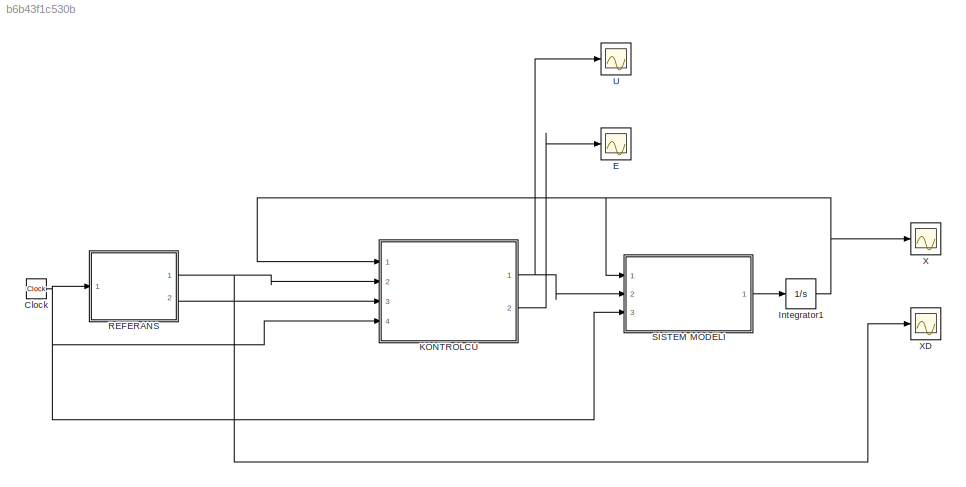
MODEL slx_b6b43f1c530b
KIND model
BLOCK [Clock] Clock
BLOCK [Scope] E
  DataFormat = StructureWithTime
  Floating = off
  NumInputPorts = 1
  Ports = [1]
  SampleTime = 0
  SaveName = ScopeData1
  ShowLegends = off
BLOCK [Integrator] Integrator1
  Ports = [1, 1]
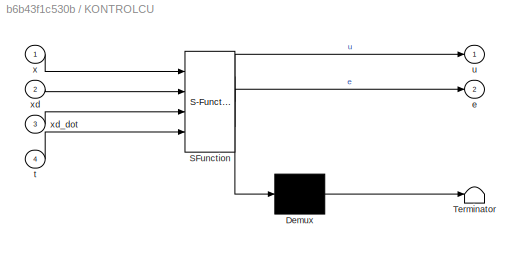
BLOCK [SubSystem] KONTROLCU
  ErrorFcn = Stateflow.Translate.translate
  FunctionWithSeparateData = off
  MaskHideContents = off
  MinAlgLoopOccurrences = off
  Opaque = off
  PermitHierarchicalResolution = ExplicitOnly
  Ports = [4, 2]
  PropExecContextOutsideSubsystem = off
  RTWSystemCode = Auto
  RequestExecContextInheritance = off
  SFBlockType = MATLAB Function
  TreatAsAtomicUnit = on
BLOCK [Demux] KONTROLCU/ Demux 
  Outputs = 1
  Ports = [1, 1]
BLOCK [S-Function] KONTROLCU/ SFunction 
  EnableBusSupport = on
  FunctionName = sf_sfun
  PortCounts = [4 3]
  Ports = [4, 3]
  Tag = Stateflow S-Function ODEV2 1
BLOCK [Terminator] KONTROLCU/ Terminator 
BLOCK [Outport] KONTROLCU/e
  IconDisplay = Port number
  Port = 2
BLOCK [Inport] KONTROLCU/t
  IconDisplay = Port number
  Port = 4
BLOCK [Outport] KONTROLCU/u
  IconDisplay = Port number
BLOCK [Inport] KONTROLCU/x
  IconDisplay = Port number
BLOCK [Inport] KONTROLCU/xd
  IconDisplay = Port number
  Port = 2
BLOCK [Inport] KONTROLCU/xd_dot
  IconDisplay = Port number
  Port = 3
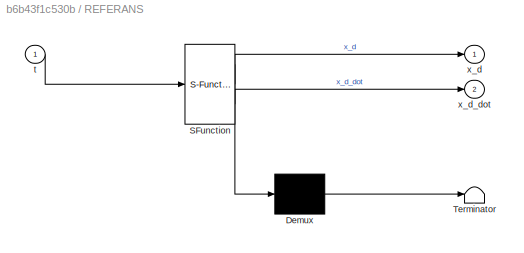
BLOCK [SubSystem] REFERANS
  ErrorFcn = Stateflow.Translate.translate
  FunctionWithSeparateData = off
  MaskHideContents = off
  MinAlgLoopOccurrences = off
  Opaque = off
  PermitHierarchicalResolution = ExplicitOnly
  Ports = [1, 2]
  PropExecContextOutsideSubsystem = off
  RTWSystemCode = Auto
  RequestExecContextInheritance = off
  SFBlockType = MATLAB Function
  TreatAsAtomicUnit = on
BLOCK [Demux] REFERANS/ Demux 
  Outputs = 1
  Ports = [1, 1]
BLOCK [S-Function] REFERANS/ SFunction 
  EnableBusSupport = on
  FunctionName = sf_sfun
  PortCounts = [1 3]
  Ports = [1, 3]
  Tag = Stateflow S-Function ODEV2 2
BLOCK [Terminator] REFERANS/ Terminator 
BLOCK [Inport] REFERANS/t
  IconDisplay = Port number
BLOCK [Outport] REFERANS/x_d
  IconDisplay = Port number
BLOCK [Outport] REFERANS/x_d_dot
  IconDisplay = Port number
  Port = 2
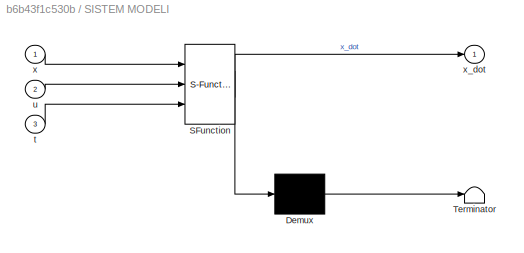
BLOCK [SubSystem] SISTEM MODELI
  ErrorFcn = Stateflow.Translate.translate
  FunctionWithSeparateData = off
  MaskHideContents = off
  MinAlgLoopOccurrences = off
  Opaque = off
  PermitHierarchicalResolution = ExplicitOnly
  Ports = [3, 1]
  PropExecContextOutsideSubsystem = off
  RTWSystemCode = Auto
  RequestExecContextInheritance = off
  SFBlockType = MATLAB Function
  TreatAsAtomicUnit = on
BLOCK [Demux] SISTEM MODELI/ Demux 
  Outputs = 1
  Ports = [1, 1]
BLOCK [S-Function] SISTEM MODELI/ SFunction 
  EnableBusSupport = on
  FunctionName = sf_sfun
  PortCounts = [3 2]
  Ports = [3, 2]
  Tag = Stateflow S-Function ODEV2 3
BLOCK [Terminator] SISTEM MODELI/ Terminator 
BLOCK [Inport] SISTEM MODELI/t
  IconDisplay = Port number
  Port = 3
BLOCK [Inport] SISTEM MODELI/u
  IconDisplay = Port number
  Port = 2
BLOCK [Inport] SISTEM MODELI/x
  IconDisplay = Port number
BLOCK [Outport] SISTEM MODELI/x_dot
  IconDisplay = Port number
BLOCK [Scope] U
  DataFormat = StructureWithTime
  Floating = off
  NumInputPorts = 1
  Ports = [1]
  SampleTime = 0
  ShowLegends = off
  YMax = 6
BLOCK [Scope] X
  DataFormat = StructureWithTime
  Floating = off
  NumInputPorts = 1
  Ports = [1]
  SampleTime = 0
  SaveName = ScopeData2
  ShowLegends = off
  YMin = 1.2
BLOCK [Scope] XD
  DataFormat = StructureWithTime
  Floating = off
  NumInputPorts = 1
  Ports = [1]
  SampleTime = 0
  SaveName = ScopeData3
  ShowLegends = off
NET Clock:1 -> KONTROLCU:4, REFERANS:1, SISTEM MODELI:3
NET Integrator1:1 -> KONTROLCU:1, SISTEM MODELI:1, X:1
NET KONTROLCU:1 -> SISTEM MODELI:2, U:1
LINE KONTROLCU:2 -> E:1
NET REFERANS:1 -> KONTROLCU:2, XD:1
LINE REFERANS:2 -> KONTROLCU:3
LINE SISTEM MODELI:1 -> Integrator1:1
note: NET lines group one-source signal fan-out (src -> all destinations, sorted); 1:1 wires keep LINE
